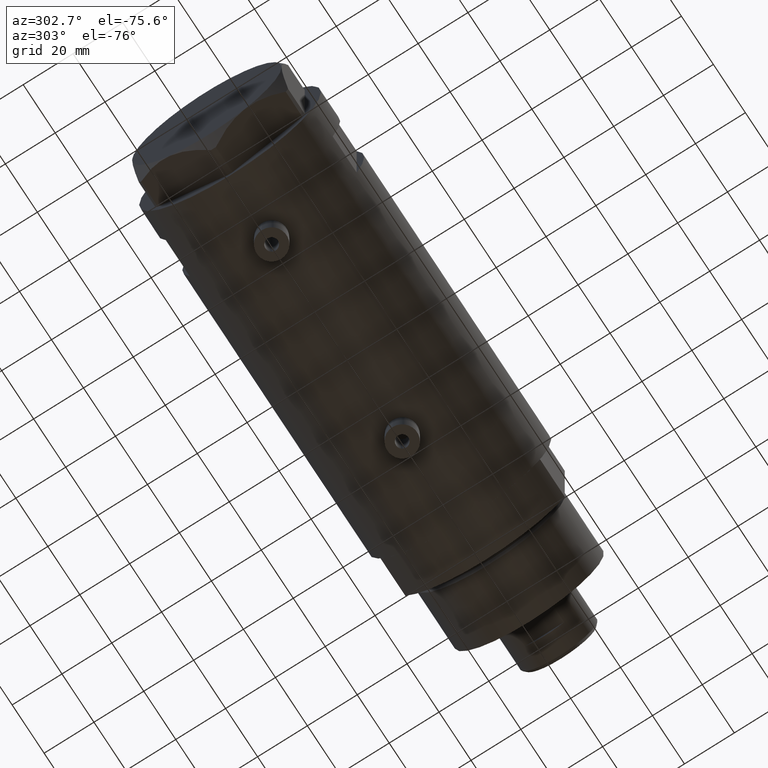
[diagram: clean part render]
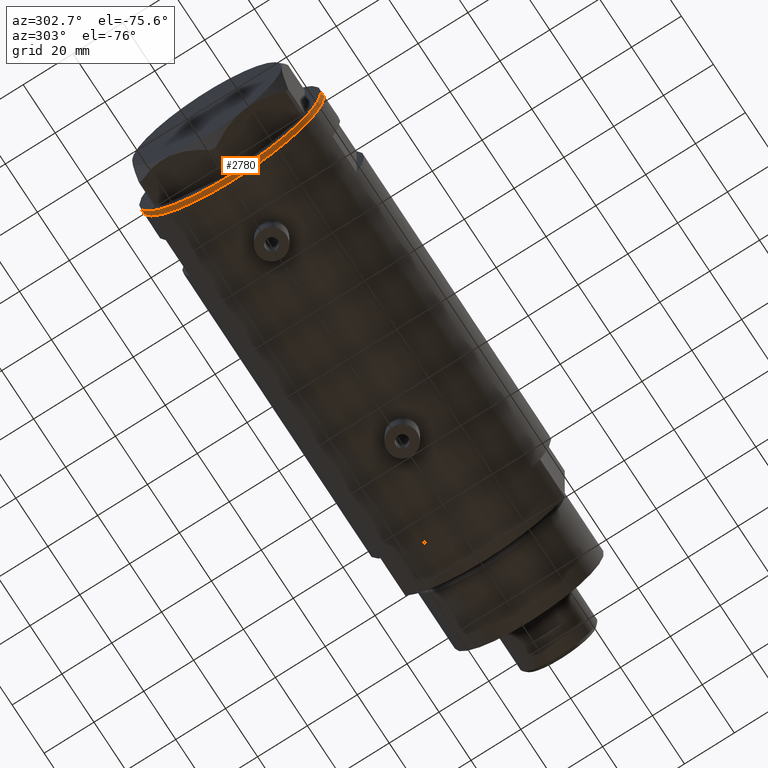
[diagram: same view with one face highlighted and labeled with its STEP entity id]
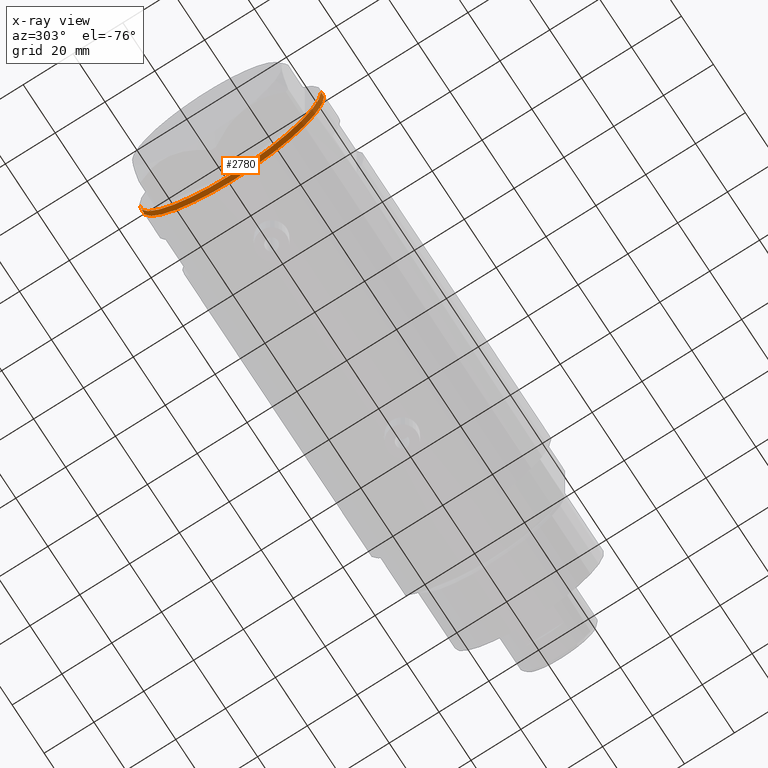
[diagram: x-ray of the same camera — body ghosted, the highlighted face saturated]
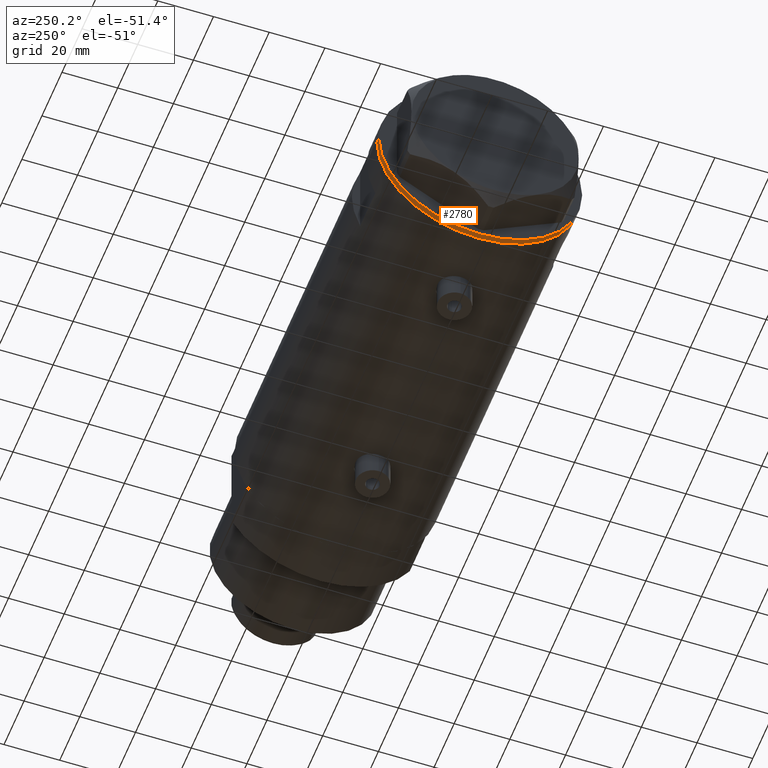
[diagram: same view with one face highlighted and labeled with its STEP entity id]
A machine part, auxiliary view. The second image highlights one B-rep face of the part: STEP entity #2780.
The next image is the same camera in x-ray: the body ghosted, the highlighted face saturated — about 0% of this face is hidden behind the body in this view.
A second angle (auxiliary view) of the same face is appended — the face is thin or edge-on in the first view.
In plain terms, the highlighted cylindrical surface (partial cylindrical patch) has radius 36.5 mm, axis along (-1, -0, 0).
Its self-contained STEP definition (entity closure, byte-faithful):
#85 = CARTESIAN_POINT ( 'NONE',  ( 36.50000000000000000, 0.000000000000000000, 0.000000000000000000 ) ) ;
#117 = LINE ( 'NONE', #2727, #2281 ) ;
#190 = VERTEX_POINT ( 'NONE', #85 ) ;
#466 = EDGE_CURVE ( 'NONE', #3637, #4011, #4149, .T. ) ;
#529 = VECTOR ( 'NONE', #569, 1000.000000000000000 ) ;
#569 = DIRECTION ( 'NONE',  ( -0.000000000000000000, -0.000000000000000000, 1.000000000000000000 ) ) ;
#594 = DIRECTION ( 'NONE',  ( -0.000000000000000000, -0.000000000000000000, 1.000000000000000000 ) ) ;
#613 = CARTESIAN_POINT ( 'NONE',  ( -36.50000000000000000, 4.469960816887838430E-15, -2.000000000000000000 ) ) ;
#661 = LINE ( 'NONE', #1368, #529 ) ;
#1050 = DIRECTION ( 'NONE',  ( 1.000000000000000000, 0.000000000000000000, 0.000000000000000000 ) ) ;
#1207 = DIRECTION ( 'NONE',  ( -0.000000000000000000, -0.000000000000000000, 1.000000000000000000 ) ) ;
#1296 = VERTEX_POINT ( 'NONE', #1665 ) ;
#1368 = CARTESIAN_POINT ( 'NONE',  ( 36.50000000000000000, 0.000000000000000000, -2.000000000000000000 ) ) ;
#1378 = ORIENTED_EDGE ( 'NONE', *, *, #3175, .F. ) ;
#1498 = DIRECTION ( 'NONE',  ( 0.000000000000000000, 0.000000000000000000, -1.000000000000000000 ) ) ;
#1565 = DIRECTION ( 'NONE',  ( 0.000000000000000000, 0.000000000000000000, -1.000000000000000000 ) ) ;
#1665 = CARTESIAN_POINT ( 'NONE',  ( -36.50000000000000000, 4.469960816887838430E-15, 0.000000000000000000 ) ) ;
#1729 = CYLINDRICAL_SURFACE ( 'NONE', #3152, 36.50000000000000000 ) ;
#2117 = FACE_OUTER_BOUND ( 'NONE', #3446, .T. ) ;
#2258 = ORIENTED_EDGE ( 'NONE', *, *, #4254, .T. ) ;
#2281 = VECTOR ( 'NONE', #1207, 1000.000000000000000 ) ;
#2704 = CARTESIAN_POINT ( 'NONE',  ( 0.000000000000000000, 0.000000000000000000, 0.000000000000000000 ) ) ;
#2727 = CARTESIAN_POINT ( 'NONE',  ( -36.50000000000000000, 4.469960816887838430E-15, -2.000000000000000000 ) ) ;
#2780 = ADVANCED_FACE ( 'NONE', ( #2117 ), #1729, .T. ) ;
#2794 = CARTESIAN_POINT ( 'NONE',  ( 0.000000000000000000, 0.000000000000000000, -2.000000000000000000 ) ) ;
#2828 = CARTESIAN_POINT ( 'NONE',  ( 0.000000000000000000, 0.000000000000000000, -2.000000000000000000 ) ) ;
#2836 = AXIS2_PLACEMENT_3D ( 'NONE', #2828, #1498, #3578 ) ;
#3152 = AXIS2_PLACEMENT_3D ( 'NONE', #2794, #594, #1050 ) ;
#3175 = EDGE_CURVE ( 'NONE', #4011, #190, #661, .T. ) ;
#3446 = EDGE_LOOP ( 'NONE', ( #4342, #4054, #2258, #1378 ) ) ;
#3520 = CARTESIAN_POINT ( 'NONE',  ( 36.50000000000000000, 0.000000000000000000, -2.000000000000000000 ) ) ;
#3578 = DIRECTION ( 'NONE',  ( -1.000000000000000000, 0.000000000000000000, 0.000000000000000000 ) ) ;
#3637 = VERTEX_POINT ( 'NONE', #613 ) ;
#3825 = AXIS2_PLACEMENT_3D ( 'NONE', #2704, #1565, #4084 ) ;
#3958 = EDGE_CURVE ( 'NONE', #3637, #1296, #117, .T. ) ;
#4011 = VERTEX_POINT ( 'NONE', #3520 ) ;
#4054 = ORIENTED_EDGE ( 'NONE', *, *, #3958, .T. ) ;
#4084 = DIRECTION ( 'NONE',  ( -1.000000000000000000, 0.000000000000000000, 0.000000000000000000 ) ) ;
#4143 = CIRCLE ( 'NONE', #3825, 36.50000000000000000 ) ;
#4149 = CIRCLE ( 'NONE', #2836, 36.50000000000000000 ) ;
#4254 = EDGE_CURVE ( 'NONE', #1296, #190, #4143, .T. ) ;
#4342 = ORIENTED_EDGE ( 'NONE', *, *, #466, .F. ) ;